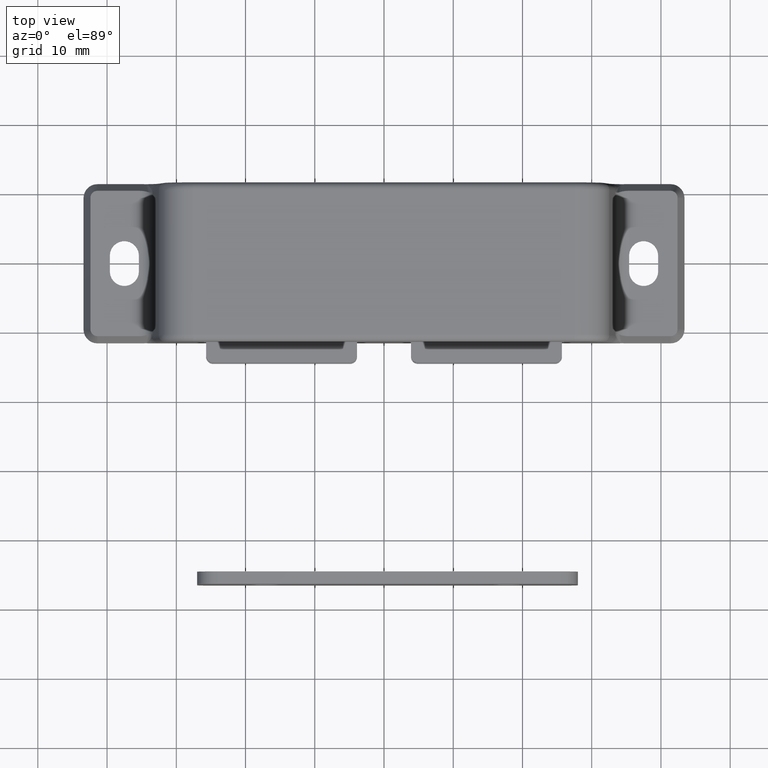
[diagram: clean part render]
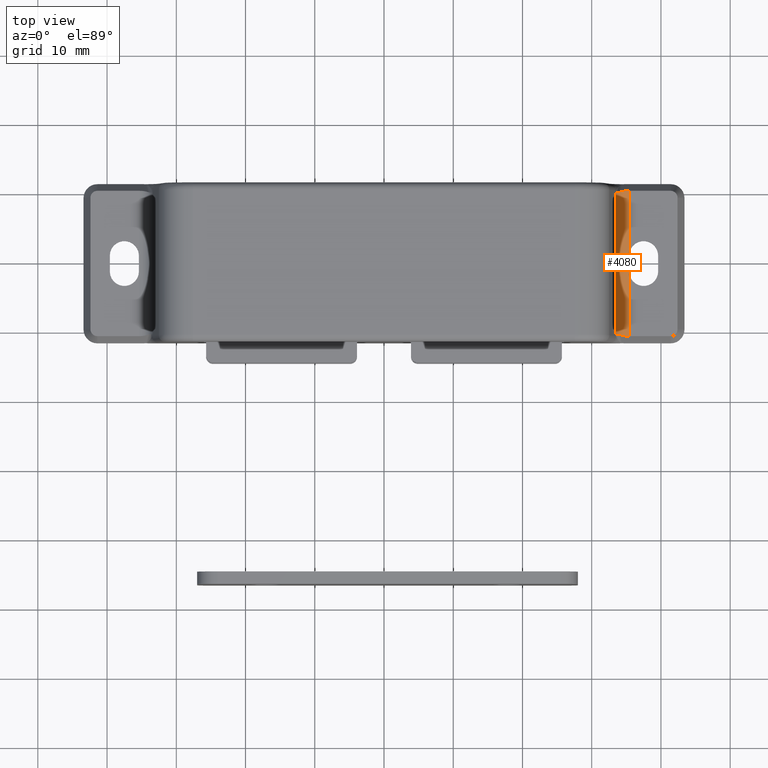
[diagram: same view with one face highlighted and labeled with its STEP entity id]
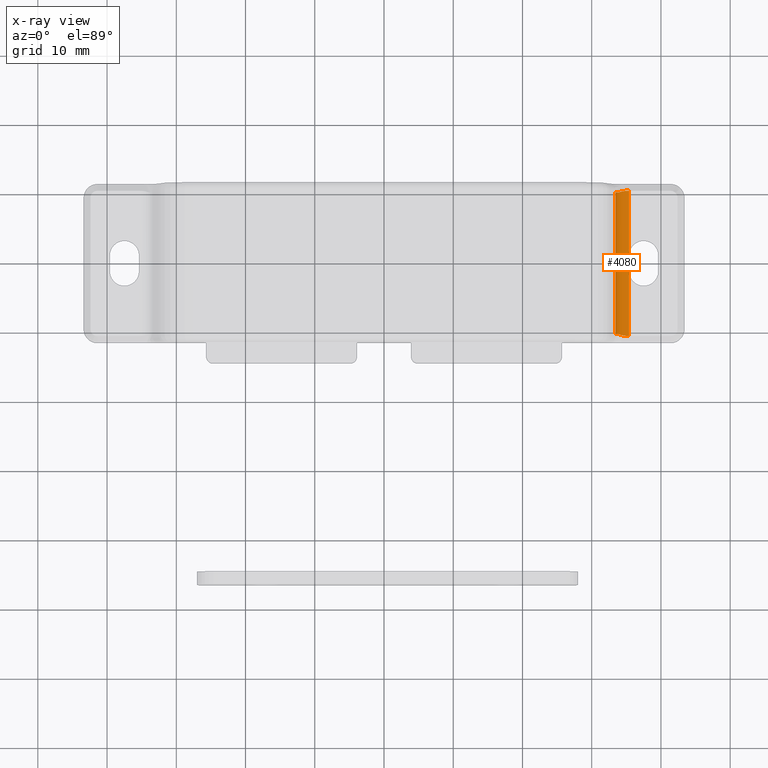
[diagram: x-ray of the same camera — body ghosted, the highlighted face saturated]
A machine part, top view. The second image highlights one B-rep face of the part: STEP entity #4080.
The next image is the same camera in x-ray: the body ghosted, the highlighted face saturated — about 0% of this face is hidden behind the body in this view.
In plain terms, the highlighted cylindrical surface (edge-blend (fillet) strip) has radius 2 mm, axis along (0, 1, 0).
Its self-contained STEP definition (entity closure, byte-faithful):
#66=CYLINDRICAL_SURFACE('',#4359,2.);
#120=B_SPLINE_CURVE_WITH_KNOTS('',3,(#6414,#6415,#6416,#6417,#6418,#6419),
 .UNSPECIFIED.,.F.,.F.,(4,2,4),(-0.497057123008022,-0.423976671733705,-0.363067431482396),
 .UNSPECIFIED.);
#121=B_SPLINE_CURVE_WITH_KNOTS('',3,(#6422,#6423,#6424,#6425,#6426,#6427),
 .UNSPECIFIED.,.F.,.F.,(4,2,4),(-0.133989691525626,-0.0730804512743178,
0.),.UNSPECIFIED.);
#300=ELLIPSE('',#4358,2.1540659228538,2.);
#301=ELLIPSE('',#4360,2.1540659228538,2.);
#378=FACE_OUTER_BOUND('',#620,.T.);
#620=EDGE_LOOP('',(#2986,#2987,#2988,#2989,#2990,#2991));
#943=LINE('',#6385,#1379);
#952=LINE('',#6421,#1388);
#1379=VECTOR('',#4933,21.);
#1388=VECTOR('',#4958,20.623276173513);
#1802=VERTEX_POINT('',#6383);
#1803=VERTEX_POINT('',#6384);
#1813=VERTEX_POINT('',#6407);
#1814=VERTEX_POINT('',#6411);
#1815=VERTEX_POINT('',#6413);
#1816=VERTEX_POINT('',#6420);
#2247=EDGE_CURVE('',#1802,#1803,#943,.T.);
#2259=EDGE_CURVE('',#1813,#1802,#300,.T.);
#2261=EDGE_CURVE('',#1803,#1814,#301,.T.);
#2262=EDGE_CURVE('',#1815,#1814,#120,.T.);
#2263=EDGE_CURVE('',#1815,#1816,#952,.T.);
#2264=EDGE_CURVE('',#1813,#1816,#121,.T.);
#2986=ORIENTED_EDGE('',*,*,#2259,.T.);
#2987=ORIENTED_EDGE('',*,*,#2247,.T.);
#2988=ORIENTED_EDGE('',*,*,#2261,.T.);
#2989=ORIENTED_EDGE('',*,*,#2262,.F.);
#2990=ORIENTED_EDGE('',*,*,#2263,.T.);
#2991=ORIENTED_EDGE('',*,*,#2264,.F.);
#4080=ADVANCED_FACE('',(#378),#66,.F.);
#4358=AXIS2_PLACEMENT_3D('',#6408,#4951,#4952);
#4359=AXIS2_PLACEMENT_3D('',#6410,#4954,#4955);
#4360=AXIS2_PLACEMENT_3D('',#6412,#4956,#4957);
#4933=DIRECTION('',(0.,1.,0.));
#4951=DIRECTION('center_axis',(2.10552797308588E-17,-0.928476690885259,
0.371390676354104));
#4952=DIRECTION('ref_axis',(3.86556075018221E-16,-0.371390676354104,-0.928476690885259));
#4954=DIRECTION('center_axis',(0.,1.,0.));
#4955=DIRECTION('ref_axis',(-0.662620048215758,0.,-0.748955720788984));
#4956=DIRECTION('center_axis',(2.10552797308588E-17,0.928476690885259,0.371390676354104));
#4957=DIRECTION('ref_axis',(3.86556075018221E-16,0.371390676354104,-0.928476690885259));
#4958=DIRECTION('',(0.,-1.,0.));
#6383=CARTESIAN_POINT('',(35.3779282769729,-10.5,2.5));
#6384=CARTESIAN_POINT('',(35.3779282769729,10.5,2.5));
#6385=CARTESIAN_POINT('',(35.3779282769729,0.,2.5));
#6407=CARTESIAN_POINT('',(34.0246829087473,-10.2890639317936,3.02734017051594));
#6408=CARTESIAN_POINT('Origin',(35.3779282769729,-9.7,4.5));
#6410=CARTESIAN_POINT('Origin',(35.3779282769729,0.,4.5));
#6411=CARTESIAN_POINT('',(34.0246829087473,10.2890639317936,3.02734017051594));
#6412=CARTESIAN_POINT('Origin',(35.3779282769729,9.7,4.5));
#6413=CARTESIAN_POINT('',(33.3928359736902,10.3116380867565,4.25626131318982));
#6414=CARTESIAN_POINT('Ctrl Pts',(33.3928359736902,10.3116380867565,4.25626131318981));
#6415=CARTESIAN_POINT('Ctrl Pts',(33.4222329674081,10.2776394390457,4.01684201240991));
#6416=CARTESIAN_POINT('Ctrl Pts',(33.5114882054872,10.2382991073311,3.7412737295627));
#6417=CARTESIAN_POINT('Ctrl Pts',(33.7283018265584,10.2221481543876,3.35113091419514));
#6418=CARTESIAN_POINT('Ctrl Pts',(33.8780170360439,10.2351546965611,3.16211325859713));
#6419=CARTESIAN_POINT('Ctrl Pts',(34.0246829087473,10.2890639317936,3.02734017051595));
#6420=CARTESIAN_POINT('',(33.3928359736902,-10.3116380867565,4.25626131318982));
#6421=CARTESIAN_POINT('',(33.3928359736902,0.,4.25626131318982));
#6422=CARTESIAN_POINT('Ctrl Pts',(34.0246829087473,-10.2890639317936,3.02734017051596));
#6423=CARTESIAN_POINT('Ctrl Pts',(33.8780170360439,-10.2351546965611,3.16211325859713));
#6424=CARTESIAN_POINT('Ctrl Pts',(33.7283018265584,-10.2221481543876,3.35113091419514));
#6425=CARTESIAN_POINT('Ctrl Pts',(33.5114882054872,-10.2382991073311,3.7412737295627));
#6426=CARTESIAN_POINT('Ctrl Pts',(33.4222329674081,-10.2776394390457,4.01684201240991));
#6427=CARTESIAN_POINT('Ctrl Pts',(33.3928359736902,-10.3116380867565,4.25626131318981));